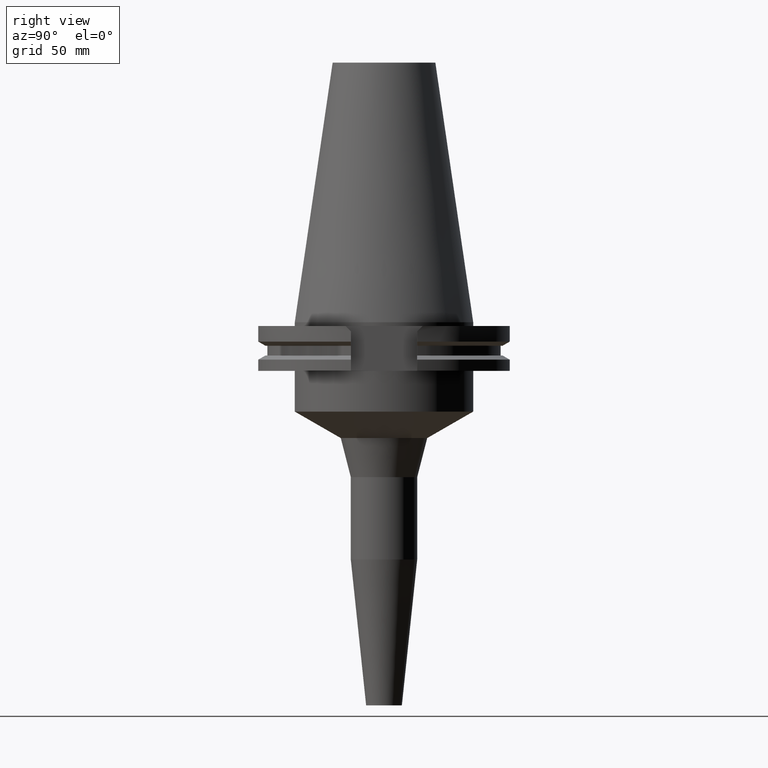
[diagram: clean part render]
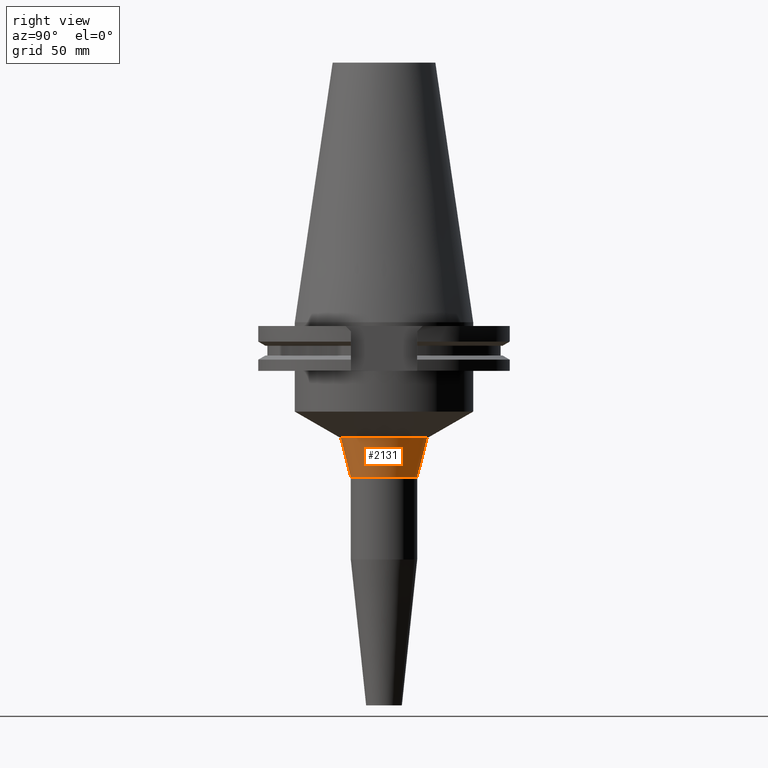
[diagram: same view with one face highlighted and labeled with its STEP entity id]
A machine part, right view. The second image highlights one B-rep face of the part: STEP entity #2131.
In plain terms, the highlighted conical surface has half-angle 14.382 deg.
Its self-contained STEP definition (entity closure, byte-faithful):
#900=DIRECTION('',(0.E0,2.483855855232E-1,-9.686612415619E-1));
#901=VECTOR('',#900,1.578670072698E1);
#902=CARTESIAN_POINT('',(0.E0,-1.692118890355E1,-4.536603487364E1));
#903=LINE('',#902,#901);
#915=DIRECTION('',(0.E0,-2.483855855232E-1,-9.686612415619E-1));
#916=VECTOR('',#915,1.578670072698E1);
#917=CARTESIAN_POINT('',(0.E0,1.692118890355E1,-4.536603487364E1));
#918=LINE('',#917,#916);
#922=CARTESIAN_POINT('',(0.E0,0.E0,-6.0658E1));
#923=DIRECTION('',(0.E0,0.E0,-1.E0));
#924=DIRECTION('',(0.E0,1.E0,0.E0));
#925=AXIS2_PLACEMENT_3D('',#922,#923,#924);
#930=CARTESIAN_POINT('',(0.E0,0.E0,-4.536603487364E1));
#931=DIRECTION('',(0.E0,0.E0,1.E0));
#932=DIRECTION('',(0.E0,-1.E0,0.E0));
#933=AXIS2_PLACEMENT_3D('',#930,#931,#932);
#1298=CARTESIAN_POINT('',(0.E0,1.3E1,-6.0658E1));
#1299=VERTEX_POINT('',#1298);
#1300=CARTESIAN_POINT('',(0.E0,-1.3E1,-6.0658E1));
#1301=VERTEX_POINT('',#1300);
#1302=CARTESIAN_POINT('',(0.E0,1.692118890355E1,-4.536603487364E1));
#1303=VERTEX_POINT('',#1302);
#1304=CARTESIAN_POINT('',(0.E0,-1.692118890355E1,-4.536603487364E1));
#1305=VERTEX_POINT('',#1304);
#2119=CARTESIAN_POINT('',(0.E0,0.E0,-5.301201743682E1));
#2120=DIRECTION('',(0.E0,0.E0,1.E0));
#2121=DIRECTION('',(0.E0,1.E0,0.E0));
#2122=AXIS2_PLACEMENT_3D('',#2119,#2120,#2121);
#2123=CONICAL_SURFACE('',#2122,1.496059445177E1,1.4382E1);
#2124=ORIENTED_EDGE('',*,*,#2109,.T.);
#2126=ORIENTED_EDGE('',*,*,#2125,.T.);
#2127=ORIENTED_EDGE('',*,*,#2112,.F.);
#2128=ORIENTED_EDGE('',*,*,#2083,.T.);
#2129=EDGE_LOOP('',(#2124,#2126,#2127,#2128));
#2130=FACE_OUTER_BOUND('',#2129,.F.);
#926=CIRCLE('',#925,1.3E1);
#934=CIRCLE('',#933,1.692118890354E1);
#2083=EDGE_CURVE('',#1305,#1303,#934,.T.);
#2109=EDGE_CURVE('',#1303,#1299,#918,.T.);
#2112=EDGE_CURVE('',#1305,#1301,#903,.T.);
#2125=EDGE_CURVE('',#1299,#1301,#926,.T.);
#2131=ADVANCED_FACE('',(#2130),#2123,.T.);